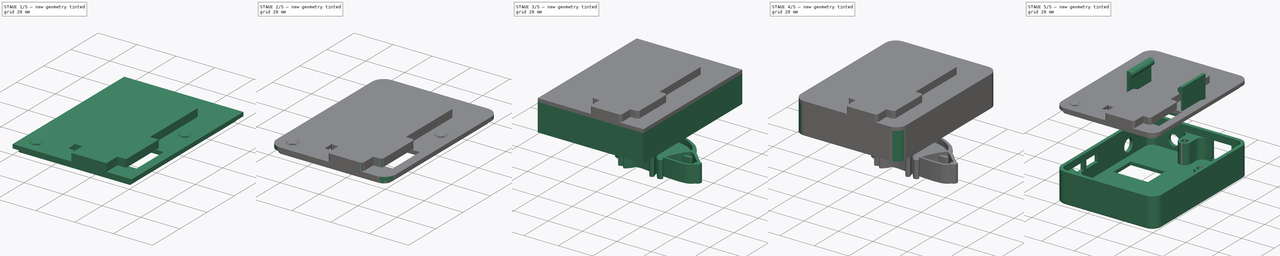
[diagram: build sequence overview — one tinted view per stage of 5, left to right]
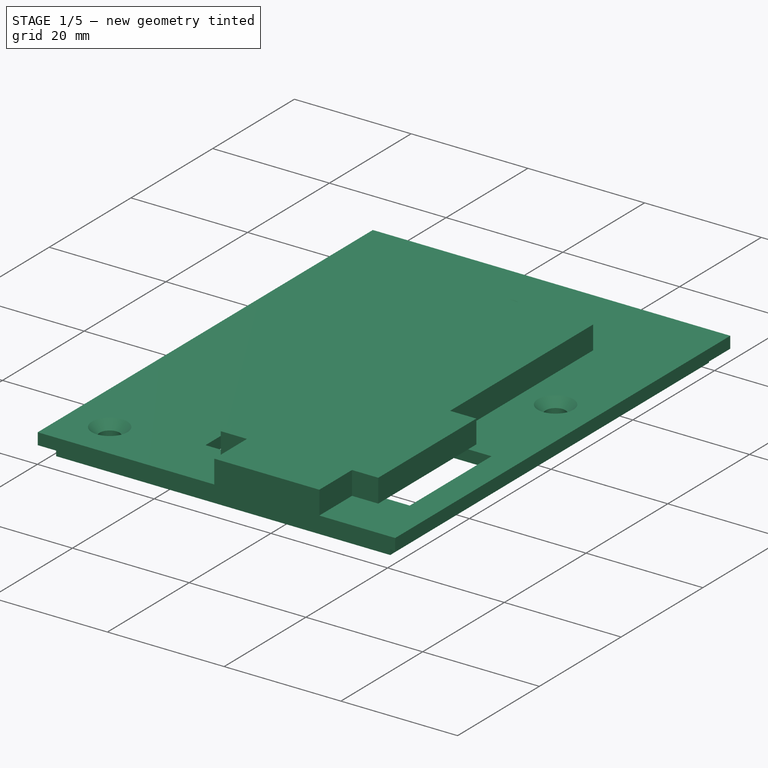
[diagram: stage 1 of 5 — iso view after this stage's code; geometry added in this stage tinted green]
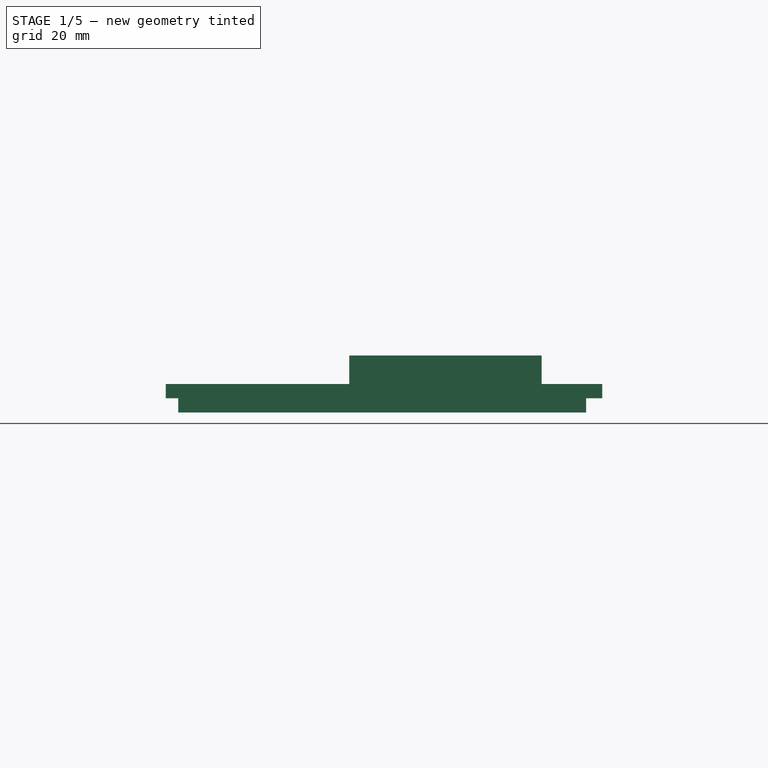
[diagram: stage 1 of 5 — front view after this stage's code; geometry added in this stage tinted green]
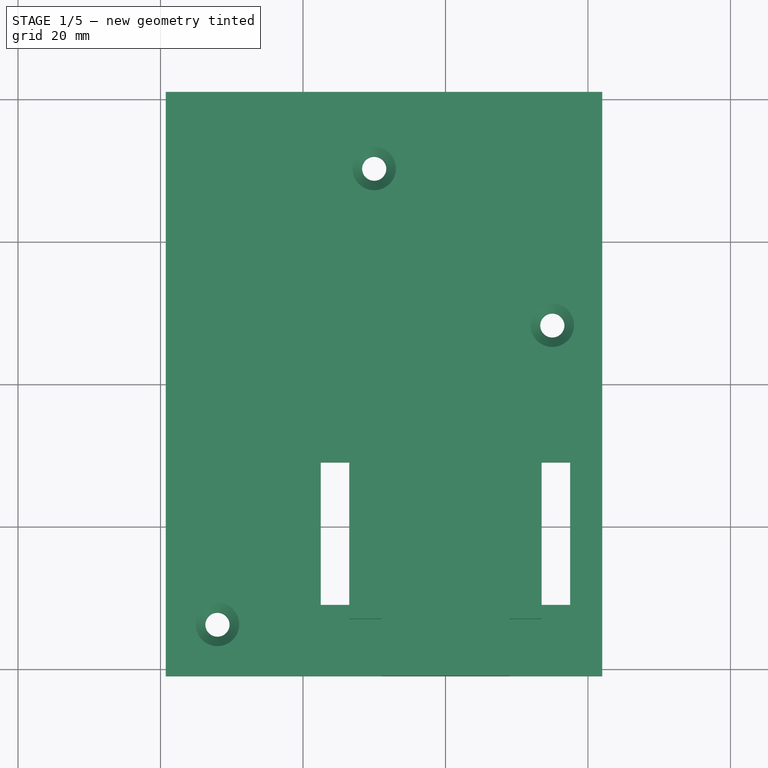
[diagram: stage 1 of 5 — top view after this stage's code; geometry added in this stage tinted green]
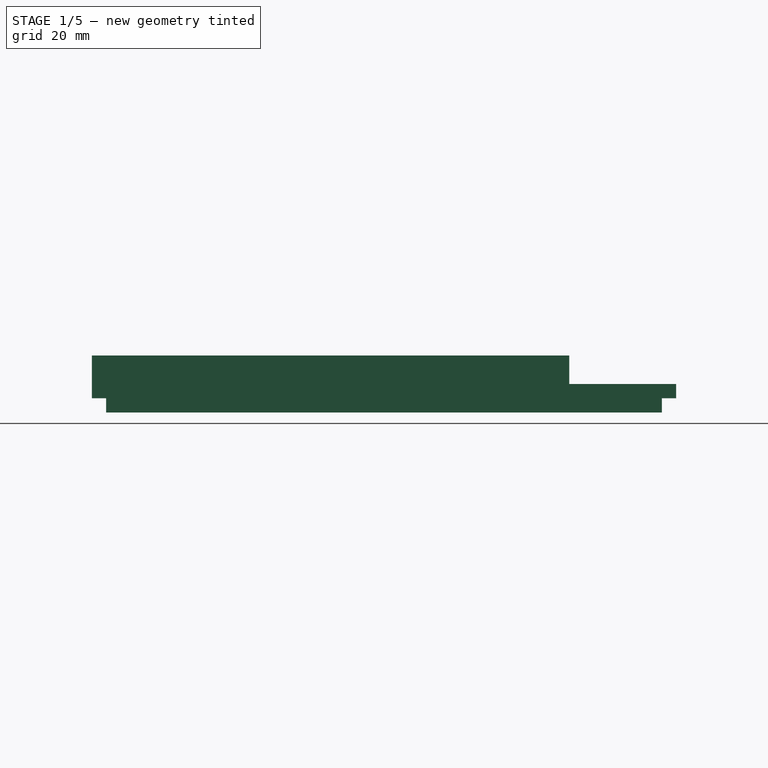
[diagram: stage 1 of 5 — right view after this stage's code; geometry added in this stage tinted green]
FCSTD DOCUMENT  (FreeCAD 0.21R33771 (Git))
Label: Elec Enclosure
License: All rights reserved
LicenseURL: http://en.wikipedia.org/wiki/All_rights_reserved
objects: Sketcher::SketchObject×13, PartDesign::Pad×7, PartDesign::Fillet×7, PartDesign::Pocket×5, Part::Feature×4, PartDesign::Body×3, PartDesign::Plane×3, Part::FeaturePython×2, PartDesign::Chamfer×1, Part::Extrusion×1, Part::Cut×1, PartDesign::Hole×1
note: 69 computed .brp shape members not serialized (recipe doc carries the construction recipe); baked Part::Feature solids carry a one-line shape summary decoded from their .brp

FEATURE [Sketcher::SketchObject] Sketch008
  FullyConstrained = true
  MapMode = 5
  Support = -> [XY_Plane002]
  sketch-geometry (19):
    g0: ArcOfCircle CenterX=-10 CenterY=30.25 CenterZ=0 NormalX=0 NormalY=0 NormalZ=1 AngleXU=0 Radius=3.5 StartAngle=3.14159 EndAngle=6.28319
    g1: ArcOfCircle CenterX=-32 CenterY=-33.75 CenterZ=0 NormalX=0 NormalY=0 NormalZ=1 AngleXU=0 Radius=3.5 StartAngle=0 EndAngle=1.5708
    g2: ArcOfCircle CenterX=15 CenterY=8.25 CenterZ=0 NormalX=0 NormalY=0 NormalZ=1 AngleXU=0 Radius=3.5 StartAngle=1.5708 EndAngle=4.71239
    g3: LineSegment StartX=-36.5 StartY=38 StartZ=0 EndX=-13.5 EndY=38 EndZ=0
    g4: LineSegment StartX=18.75 StartY=38 StartZ=0 EndX=18.75 EndY=11.75 EndZ=0
    g5: LineSegment StartX=18.75 StartY=-38 StartZ=0 EndX=-28.5 EndY=-38 EndZ=0
    g6: LineSegment StartX=-36.5 StartY=-30.25 StartZ=0 EndX=-36.5 EndY=38 EndZ=0
    g7: LineSegment StartX=-37.5 StartY=39 StartZ=0 EndX=19.75 EndY=39 EndZ=0
    g8: LineSegment StartX=19.75 StartY=39 StartZ=0 EndX=19.75 EndY=-39 EndZ=0
    g9: LineSegment StartX=19.75 StartY=-39 StartZ=0 EndX=-37.5 EndY=-39 EndZ=0
    g10: LineSegment StartX=-37.5 StartY=-39 StartZ=0 EndX=-37.5 EndY=39 EndZ=0
    g11: LineSegment StartX=15 StartY=11.75 StartZ=0 EndX=18.75 EndY=11.75 EndZ=0
    g12: LineSegment StartX=15 StartY=4.75 StartZ=0 EndX=18.75 EndY=4.75 EndZ=0
    g13: LineSegment StartX=-13.5 StartY=30.25 StartZ=0 EndX=-13.5 EndY=38 EndZ=0
    g14: LineSegment StartX=-6.5 StartY=30.25 StartZ=0 EndX=-6.5 EndY=38 EndZ=0
    g15: LineSegment StartX=-28.5 StartY=-33.75 StartZ=0 EndX=-28.5 EndY=-38 EndZ=0
    g16: LineSegment StartX=-32 StartY=-30.25 StartZ=0 EndX=-36.5 EndY=-30.25 EndZ=0
    g17: LineSegment StartX=18.75 StartY=4.75 StartZ=0 EndX=18.75 EndY=-38 EndZ=0
    g18: LineSegment StartX=-6.5 StartY=38 StartZ=0 EndX=18.75 EndY=38 EndZ=0
  constraints (53):
    c: DistanceY(g1,g0) = 64
    c: DistanceX(g1,g0) = 22
    c: DistanceY(g1,g2) = 42
    c: DistanceX(g1,g2) = 47
    c: Diameter(g0) = 7
    c: Equal(g0,g2)
    c: Equal(g2,g1)
    c: Coincident(g18,g4)
    c: Coincident(g17,g5)
    c: Coincident(g6,g3)
    c: Horizontal(g3)
    c: Horizontal(g5)
    c: Vertical(g4)
    c: Vertical(g6)
    c: Coincident(g7,g8)
    c: Coincident(g8,g9)
    c: Coincident(g9,g10)
    c: Coincident(g10,g7)
    c: Horizontal(g7)
    c: Horizontal(g9)
    c: Vertical(g10)
    c: Horizontal(g11)
    c: Horizontal(g12)
    c: Vertical(g13)
    c: Horizontal(g16)
    c: Vertical(g14)
    c: Vertical(g15)
    c: DistanceX(g11,g7) = 4.75
    c: DistanceX(g7,g7) = 57.25
    c: DistanceY(g10,g10) = 78
    c: DistanceY(g9,g1) = 5.25
    c: Tangent(g1,g16) = -1.5708
    c: Tangent(g1,g15) = 1.5708
    c: Coincident(g5,g15)
    c: Coincident(g6,g16)
    c: Tangent(g2,g12) = -1.5708
    c: Tangent(g2,g11) = 1.5708
    c: Coincident(g4,g11)
    c: Coincident(g17,g12)
    c: Tangent(g0,g14) = -1.5708
    c: Tangent(g0,g13) = 1.5708
    c: Coincident(g3,g13)
    c: Coincident(g18,g14)
    c: Horizontal(g14,g3)
    c: Horizontal(g18)
    c: Vertical(g17)
    c: Vertical(g12,g4)
    c: DistanceX(g7,g3) = 1
    c: DistanceY(g3,g7) = 1
    c: DistanceY(g8,g5) = 1
    c: DistanceX(g5,g8) = 1
    c: Symmetric(g7,g8,g-1)
    c: DistanceX(g-1,g2) = 15
FEATURE [PartDesign::Pad] Pad004
  Direction = (0,0,1)
  Length = 2
  Length2 = 10
  Profile = -> Sketch008
  ReferenceAxis = -> Sketch008 [N_Axis]
  Reversed = true
  Type = 0
FEATURE [Sketcher::SketchObject] Sketch009
  FullyConstrained = true
  MapMode = 5
  Support = -> [XY_Plane002]
  sketch-geometry (4):
    g0: LineSegment StartX=-39.25 StartY=41 StartZ=0 EndX=22 EndY=41 EndZ=0
    g1: LineSegment StartX=22 StartY=41 StartZ=0 EndX=22 EndY=-41 EndZ=0
    g2: LineSegment StartX=22 StartY=-41 StartZ=0 EndX=-39.25 EndY=-41 EndZ=0
    g3: LineSegment StartX=-39.25 StartY=-41 StartZ=0 EndX=-39.25 EndY=41 EndZ=0
  constraints (11):
    c: Coincident(g0,g1)
    c: Coincident(g1,g2)
    c: Coincident(g2,g3)
    c: Coincident(g3,g0)
    c: Horizontal(g0)
    c: Horizontal(g2)
    c: Vertical(g3)
    c: Symmetric(g0,g1,g-1)
    c: DistanceY(g3,g3) = 82
    c: DistanceX(g0,g0) = 61.25
    c: DistanceX(g-1,g1) = 22
FEATURE [PartDesign::Pad] Pad005
  BaseFeature = -> Pad004
  Direction = (0,0,1)
  Length = 2
  Length2 = 10
  Profile = -> Sketch009
  ReferenceAxis = -> Sketch009 [N_Axis]
  Type = 0
FEATURE [PartDesign::Plane] DatumPlane001
  AttachmentOffset = pos=(0,0,2) rot=(0,0,1;0rad)
  Length = 78.7669
  MapMode = 5
  Placement = pos=(0,0,2) rot=(0,0,1;0rad)
  ResizeMode = 0
  Support = -> [XY_Plane002]
  Width = 96.5169
FEATURE [Sketcher::SketchObject] Sketch010
  ExternalGeometry = -> [Pad005]
  FullyConstrained = true
  MapMode = 5
  Placement = pos=(0,0,2) rot=(0,0,1;0rad)
  Support = -> [DatumPlane001]
  sketch-geometry (12):
    g0: LineSegment StartX=-13.5 StartY=-33 StartZ=0 EndX=-9 EndY=-33 EndZ=0
    g1: LineSegment StartX=13.5 StartY=-33 StartZ=0 EndX=13.5 EndY=-9 EndZ=0
    g2: LineSegment StartX=13.5 StartY=-9 StartZ=0 EndX=9 EndY=-9 EndZ=0
    g3: LineSegment StartX=-13.5 StartY=-9 StartZ=0 EndX=-13.5 EndY=-33 EndZ=0
    g4: LineSegment StartX=-9 StartY=26 StartZ=0 EndX=9 EndY=26 EndZ=0
    g5: LineSegment StartX=9 StartY=26 StartZ=0 EndX=9 EndY=-9 EndZ=0
    g6: LineSegment StartX=-9 StartY=-9 StartZ=0 EndX=-9 EndY=26 EndZ=0
    g7: LineSegment StartX=-9 StartY=-9 StartZ=0 EndX=-13.5 EndY=-9 EndZ=0
    g8: LineSegment StartX=-9 StartY=-33 StartZ=0 EndX=-9 EndY=-41 EndZ=0
    g9: LineSegment StartX=-9 StartY=-41 StartZ=0 EndX=9 EndY=-41 EndZ=0
    g10: LineSegment StartX=9 StartY=-41 StartZ=0 EndX=9 EndY=-33 EndZ=0
    g11: LineSegment StartX=9 StartY=-33 StartZ=0 EndX=13.5 EndY=-33 EndZ=0
  constraints (36):
    c: Coincident(g11,g1)
    c: Coincident(g1,g2)
    c: Coincident(g7,g3)
    c: Coincident(g3,g0)
    c: Horizontal(g0)
    c: Horizontal(g2)
    c: Vertical(g1)
    c: Vertical(g3)
    c: Coincident(g4,g5)
    c: Coincident(g6,g4)
    c: Horizontal(g4)
    c: Vertical(g5)
    c: Vertical(g6)
    c: DistanceX(g0,g11) = 27
    c: DistanceX(g4,g4) = 18
    c: Equal(g2,g7)
    c: Coincident(g5,g2)
    c: Coincident(g7,g6)
    c: Horizontal(g7)
    c: Horizontal(g6,g2)
    c: Vertical(g8)
    c: Horizontal(g9)
    c: Coincident(g10,g9)
    c: Vertical(g10)
    c: Vertical(g6,g8)
    c: Vertical(g2,g10)
    c: Coincident(g0,g8)
    c: Coincident(g11,g10)
    c: Horizontal(g11)
    c: Horizontal(g10,g0)
    c: Horizontal(g9,g-3)
    c: DistanceY(g3,g3) = 24
    c: Coincident(g8,g9)
    c: DistanceX(g9,g-3) = 13
    c: DistanceY(g-3,g1) = 8
    c: DistanceY(g4,g-4) = 15
FEATURE [PartDesign::Pad] Pad006
  BaseFeature = -> Pad005
  Direction = (0,0,1)
  Length = 4
  Length2 = 10
  Profile = -> Sketch010
  ReferenceAxis = -> Sketch010 [N_Axis]
  Type = 0
FEATURE [PartDesign::Plane] DatumPlane002
  AttachmentOffset = pos=(0,0,31) rot=(0,0,1;0rad)
  Length = 75.5858
  MapMode = 5
  Placement = pos=(0,-31,-6.9e-15) rot=(1,0,0;1.5708rad)
  ResizeMode = 0
  Support = -> [XZ_Plane002]
  Width = 61.3358
FEATURE [Sketcher::SketchObject] Sketch011
  FullyConstrained = true
  MapMode = 5
  Placement = pos=(0,-31,-6.9e-15) rot=(1,0,0;1.5708rad)
  Support = -> [DatumPlane002]
  sketch-geometry (8):
    g0: LineSegment StartX=-17.5 StartY=7 StartZ=0 EndX=-17.5 EndY=0 EndZ=0
    g1: LineSegment StartX=17.5 StartY=0 StartZ=0 EndX=-17.5 EndY=0 EndZ=0
    g2: LineSegment StartX=17.5 StartY=0 StartZ=0 EndX=17.5 EndY=7 EndZ=0
    g3: LineSegment StartX=17.5 StartY=7 StartZ=0 EndX=13.5 EndY=7 EndZ=0
    g4: LineSegment StartX=13.5 StartY=7 StartZ=0 EndX=13.5 EndY=2 EndZ=0
    g5: LineSegment StartX=13.5 StartY=2 StartZ=0 EndX=-13.5 EndY=2 EndZ=0
    g6: LineSegment StartX=-13.5 StartY=2 StartZ=0 EndX=-13.5 EndY=7 EndZ=0
    g7: LineSegment StartX=-13.5 StartY=7 StartZ=0 EndX=-17.5 EndY=7 EndZ=0
  constraints (23):
    c: Vertical(g0)
    c: Coincident(g1,g0)
    c: Horizontal(g1)
    c: Coincident(g2,g1)
    c: Vertical(g2)
    c: Coincident(g3,g2)
    c: Horizontal(g3)
    c: Coincident(g4,g3)
    c: Vertical(g4)
    c: Coincident(g5,g4)
    c: Coincident(g6,g5)
    c: Vertical(g6)
    c: Coincident(g7,g6)
    c: Coincident(g7,g0)
    c: Horizontal(g7)
    c: PointOnObject(g-1,g1)
    c: DistanceY(g1,g4) = 2
    c: Equal(g4,g6)
    c: Equal(g7,g3)
    c: DistanceX(g3,g3) = 4
    c: Symmetric(g4,g5,g-2)
    c: DistanceX(g6,g3) = 27
    c: DistanceY(g4,g4) = 5
FEATURE [PartDesign::Pocket] Pocket004
  BaseFeature = -> Pad006
  Direction = (0,1,2e-16)
  Length = 20
  Length2 = 5
  Profile = -> Sketch011
  ReferenceAxis = -> Sketch011 [N_Axis]
  Type = 0
FEATURE [Sketcher::SketchObject] Sketch012
  ExternalGeometry = -> [Sketch008]
  FullyConstrained = true
  MapMode = 5
  Placement = pos=(0,0,2) rot=(0,0,1;0rad)
  Support = -> [DatumPlane001]
  sketch-geometry (3):
    g0: Circle CenterX=-32 CenterY=-33.75 CenterZ=0 NormalX=0 NormalY=0 NormalZ=1 AngleXU=0 Radius=1.5
    g1: Circle CenterX=-10 CenterY=30.25 CenterZ=0 NormalX=0 NormalY=0 NormalZ=1 AngleXU=0 Radius=1.5
    g2: Circle CenterX=15 CenterY=8.25 CenterZ=0 NormalX=0 NormalY=0 NormalZ=1 AngleXU=0 Radius=1.5
  constraints (6):
    c: Coincident(g0,g-4)
    c: Coincident(g1,g-5)
    c: Coincident(g2,g-3)
    c: Equal(g2,g1)
    c: Equal(g1,g0)
    c: Diameter(g1) = 3
FEATURE [PartDesign::Hole] Hole
  BaseFeature = -> Pocket004
  CustomThreadClearance = 0
  Depth = 25
  DepthType = 0
  Diameter = 3.4
  DrillForDepth = false
  DrillPoint = 1
  DrillPointAngle = 118
  HoleCutCountersinkAngle = 90
  HoleCutCustomValues = false
  HoleCutDepth = 0
  HoleCutDiameter = 6.1
  HoleCutType = 2
  ModelThread = false
  Profile = -> Sketch012
  Tapered = false
  TaperedAngle = 90
  ThreadClass = 0
  ThreadDepth = 25
  ThreadDepthType = 0
  ThreadDirection = 0
  ThreadFit = 0
  ThreadSize = 9
  ThreadType = 1
  Threaded = false
  UseCustomThreadClearance = false
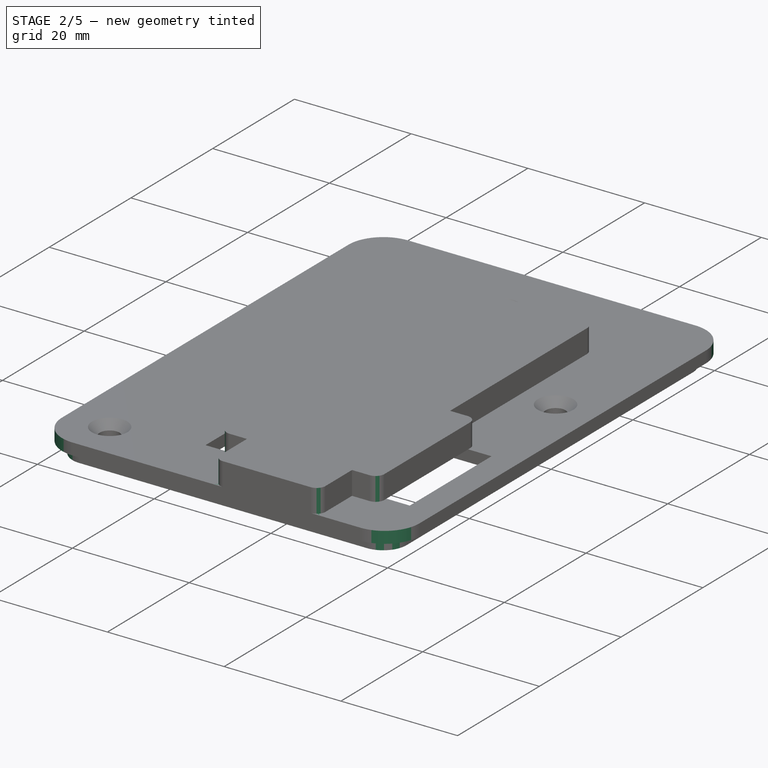
[diagram: stage 2 of 5 — iso view after this stage's code; geometry added in this stage tinted green]
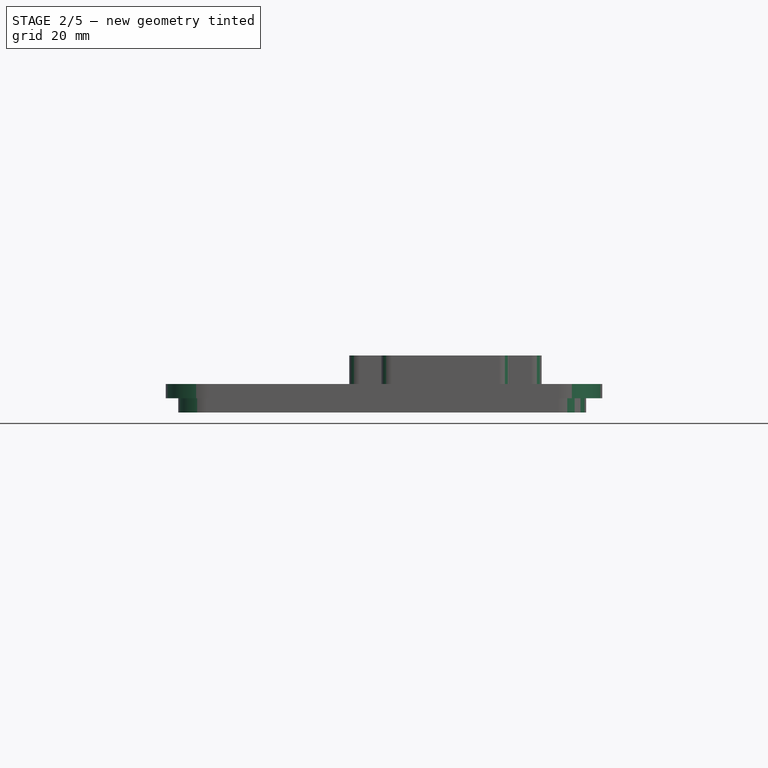
[diagram: stage 2 of 5 — front view after this stage's code; geometry added in this stage tinted green]
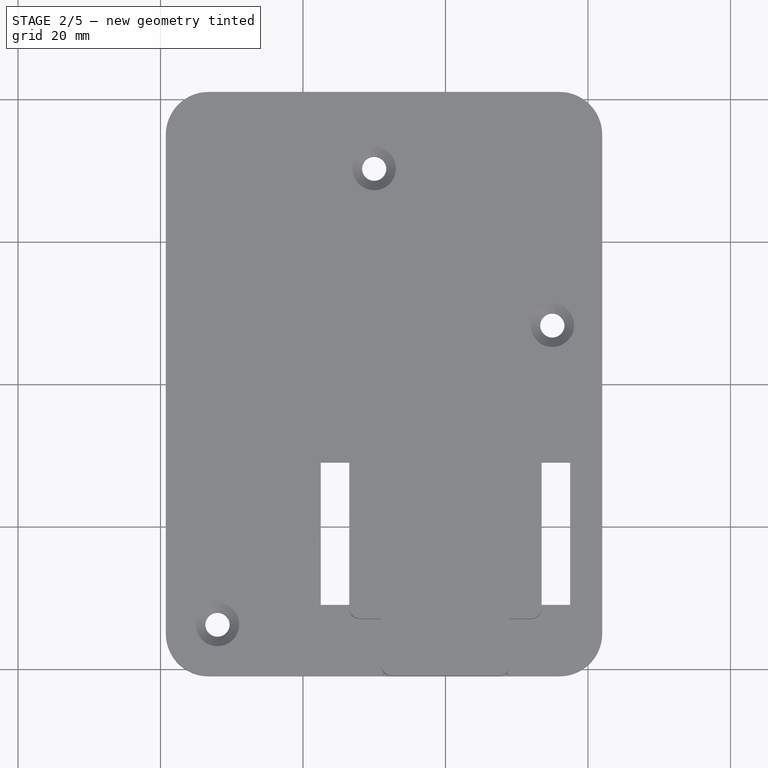
[diagram: stage 2 of 5 — top view after this stage's code; geometry added in this stage tinted green]
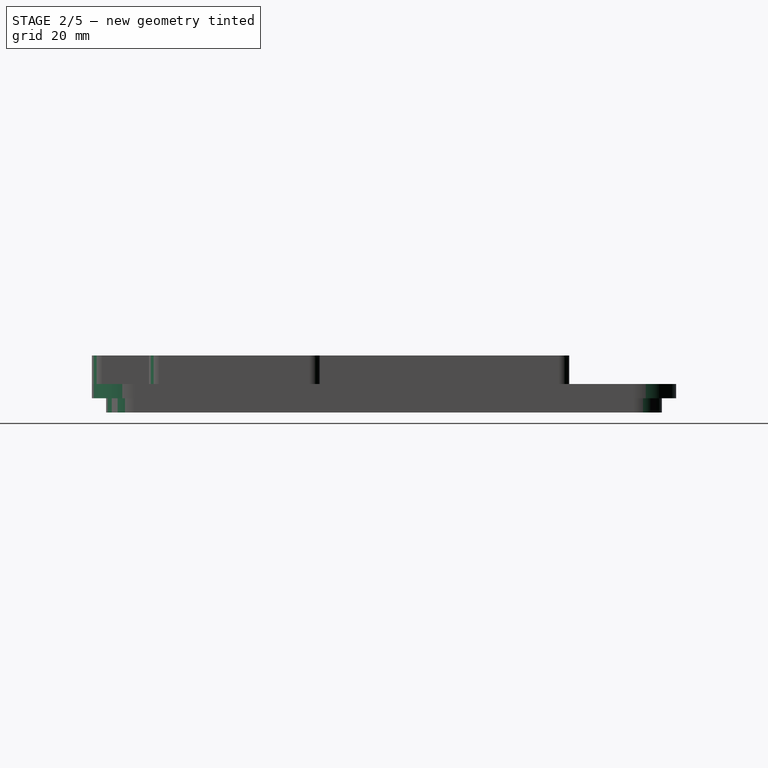
[diagram: stage 2 of 5 — right view after this stage's code; geometry added in this stage tinted green]
FEATURE [PartDesign::Fillet] Fillet003
  Base = -> Hole [Edge141,Edge147,Edge148,Edge142,Edge138,Edge137,Edge140,Edge139,Edge149]
  BaseFeature = -> Hole
  Radius = 3
  SupportTransform = false
  UseAllEdges = false
FEATURE [PartDesign::Fillet] Fillet004
  Base = -> Fillet003 [Edge85,Edge83,Edge81,Edge80]
  BaseFeature = -> Fillet003
  Radius = 4
  SupportTransform = false
  UseAllEdges = false
FEATURE [PartDesign::Fillet] Fillet005
  Base = -> Fillet004 [Edge156,Edge155,Edge175,Edge184,Edge182,Edge174,Edge164,Edge166]
  BaseFeature = -> Fillet004
  Radius = 1.5
  SupportTransform = false
  UseAllEdges = false
FEATURE [PartDesign::Fillet] Fillet006
  Base = -> Fillet005 [Edge51,Edge50,Edge61,Edge55]
  BaseFeature = -> Fillet005
  Radius = 6
  SupportTransform = false
  UseAllEdges = false
FEATURE [PartDesign::Body] Body002  label="Bottom"
  Group = -> [DatumPlane001,DatumPlane002,Sketch008,Pad004,Sketch009,Pad005,Sketch010,Pad006,Sketch011,Pocket004,Sketch012,Hole,Fillet003,Fillet004,Fillet005,Fillet006]
  Origin = -> Origin002
  Tip = -> Fillet006
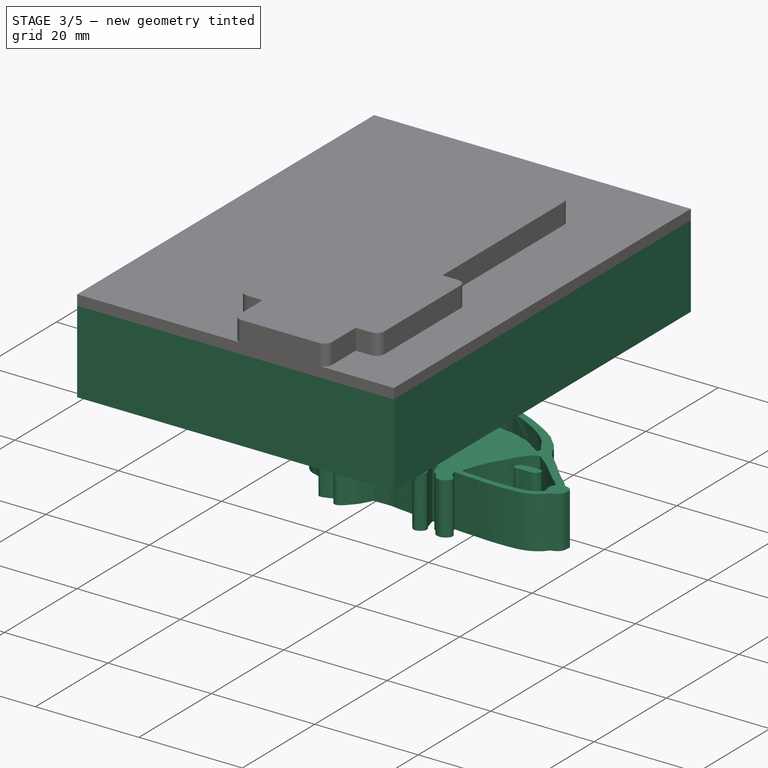
[diagram: stage 3 of 5 — iso view after this stage's code; geometry added in this stage tinted green]
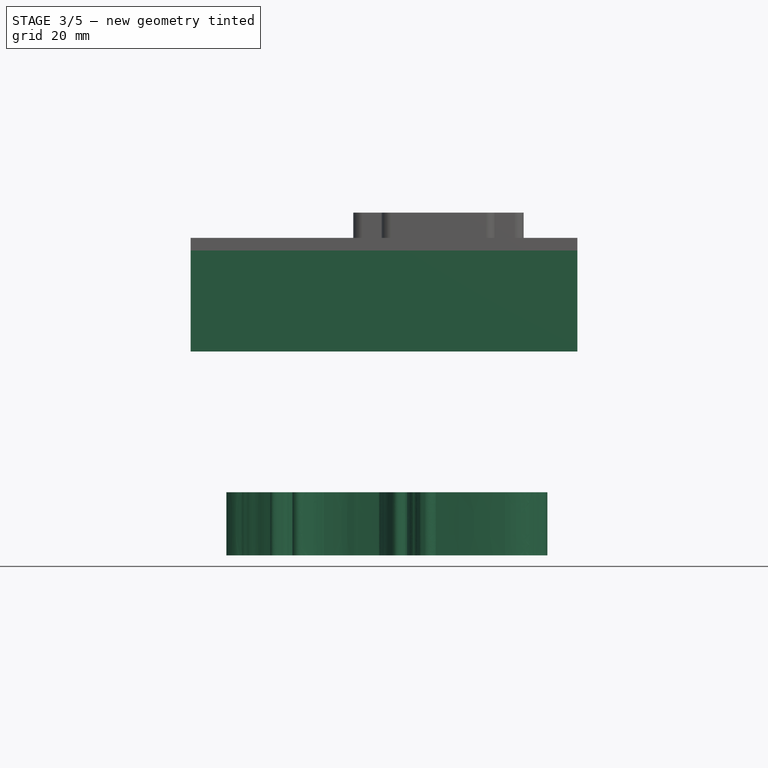
[diagram: stage 3 of 5 — front view after this stage's code; geometry added in this stage tinted green]
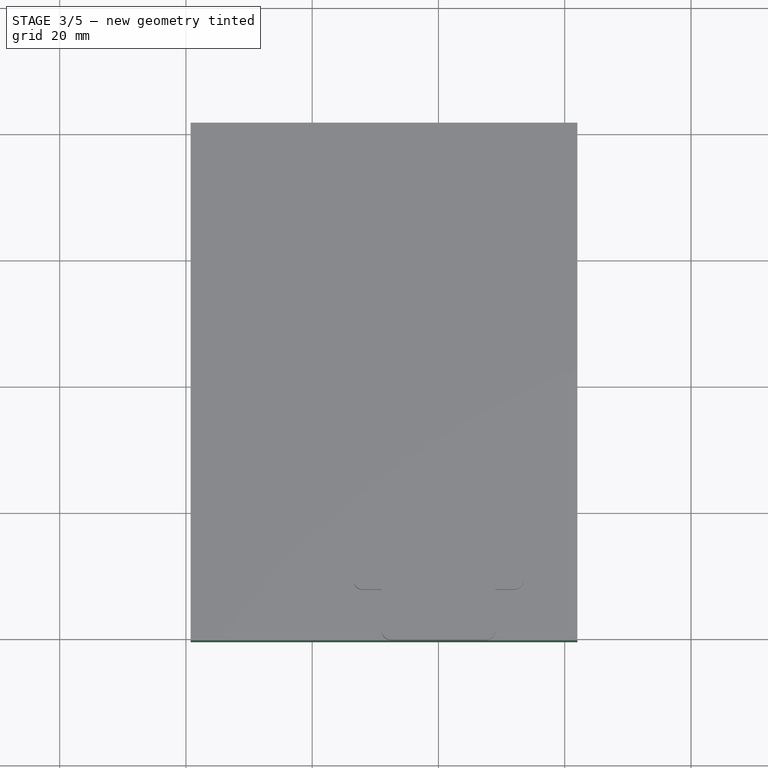
[diagram: stage 3 of 5 — top view after this stage's code; geometry added in this stage tinted green]
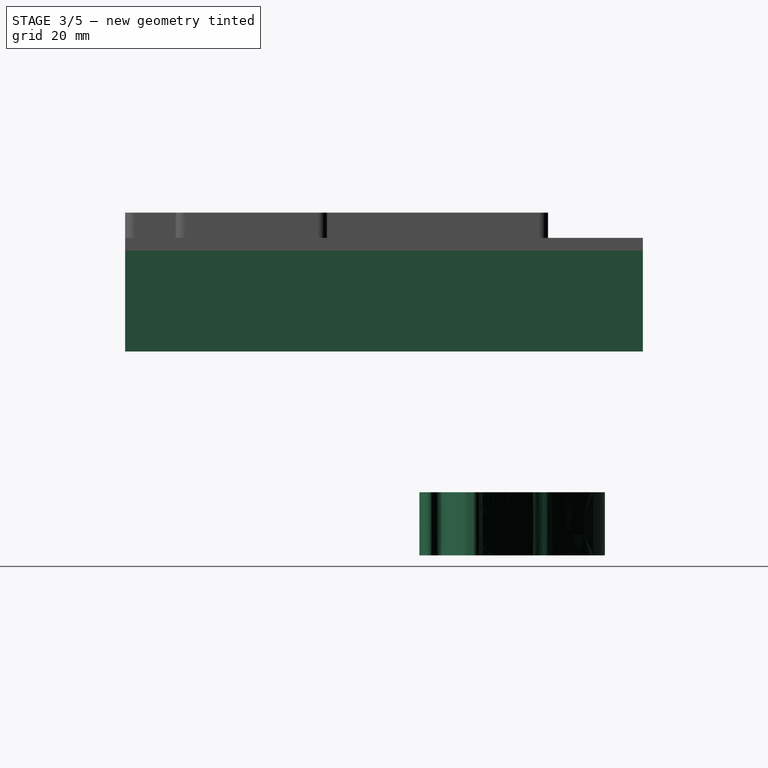
[diagram: stage 3 of 5 — right view after this stage's code; geometry added in this stage tinted green]
FEATURE [PartDesign::Body] Body  label="Bracket"
  Group = -> [Sketch,Pad]
  Origin = -> Origin
  Placement = pos=(0,-21,-24) rot=(0,0,1;0rad)
  Tip = -> Pad
FEATURE [Sketcher::SketchObject] Sketch002
  FullyConstrained = true
  MapMode = 5
  Support = -> [XY_Plane001]
  sketch-geometry (8):
    g0: LineSegment StartX=-37.25 StartY=39 StartZ=0 EndX=20 EndY=39 EndZ=0
    g1: LineSegment StartX=20 StartY=39 StartZ=0 EndX=20 EndY=-39 EndZ=0
    g2: LineSegment StartX=20 StartY=-39 StartZ=0 EndX=-37.25 EndY=-39 EndZ=0
    g3: LineSegment StartX=-37.25 StartY=-39 StartZ=0 EndX=-37.25 EndY=39 EndZ=0
    g4: LineSegment StartX=-39.25 StartY=41 StartZ=0 EndX=22 EndY=41 EndZ=0
    g5: LineSegment StartX=22 StartY=41 StartZ=0 EndX=22 EndY=-41 EndZ=0
    g6: LineSegment StartX=22 StartY=-41 StartZ=0 EndX=-39.25 EndY=-41 EndZ=0
    g7: LineSegment StartX=-39.25 StartY=-41 StartZ=0 EndX=-39.25 EndY=41 EndZ=0
  constraints (23):
    c: Coincident(g0,g1)
    c: Coincident(g1,g2)
    c: Coincident(g2,g3)
    c: Coincident(g3,g0)
    c: Horizontal(g0)
    c: Horizontal(g2)
    c: Vertical(g1)
    c: Symmetric(g0,g2,g-1)
    c: DistanceX(g-1,g0) = 20
    c: DistanceX(g0,g0) = 57.25
    c: DistanceY(g3,g3) = 78
    c: Coincident(g4,g5)
    c: Coincident(g5,g6)
    c: Coincident(g6,g7)
    c: Coincident(g7,g4)
    c: Horizontal(g4)
    c: Horizontal(g6)
    c: Vertical(g5)
    c: Vertical(g7)
    c: DistanceX(g0,g4) = 2
    c: DistanceY(g0,g4) = 2
    c: DistanceY(g6,g2) = 2
    c: DistanceX(g6,g2) = 2
FEATURE [Sketcher::SketchObject] Sketch001
  ExternalGeometry = -> [Sketch002]
  FullyConstrained = true
  MapMode = 5
  Support = -> [XY_Plane001]
  sketch-geometry (13):
    g0: ArcOfCircle CenterX=-32 CenterY=33.5 CenterZ=0 NormalX=0 NormalY=0 NormalZ=1 AngleXU=0 Radius=3.5 StartAngle=4.71239 EndAngle=6.28319
    g1: ArcOfCircle CenterX=15 CenterY=-8.5 CenterZ=0 NormalX=0 NormalY=0 NormalZ=1 AngleXU=0 Radius=3.5 StartAngle=1.5708 EndAngle=4.71239
    g2: ArcOfCircle CenterX=-10 CenterY=-30.5 CenterZ=0 NormalX=0 NormalY=0 NormalZ=1 AngleXU=0 Radius=3.5 StartAngle=4e-16 EndAngle=3.14159
    g3: LineSegment StartX=-37.25 StartY=30 StartZ=0 EndX=-32 EndY=30 EndZ=0
    g4: LineSegment StartX=-28.5 StartY=33.5 StartZ=0 EndX=-28.5 EndY=39 EndZ=0
    g5: LineSegment StartX=15 StartY=-5 StartZ=0 EndX=20 EndY=-5 EndZ=0
    g6: LineSegment StartX=15 StartY=-12 StartZ=0 EndX=20 EndY=-12 EndZ=0
    g7: LineSegment StartX=-13.5 StartY=-30.5 StartZ=0 EndX=-13.5 EndY=-39 EndZ=0
    g8: LineSegment StartX=-6.5 StartY=-30.5 StartZ=0 EndX=-6.5 EndY=-39 EndZ=0
    g9: LineSegment StartX=-37.25 StartY=30 StartZ=0 EndX=-37.25 EndY=39 EndZ=0
    g10: LineSegment StartX=-37.25 StartY=39 StartZ=0 EndX=-28.5 EndY=39 EndZ=0
    g11: LineSegment StartX=20 StartY=-5 StartZ=0 EndX=20 EndY=-12 EndZ=0
    g12: LineSegment StartX=-13.5 StartY=-39 StartZ=0 EndX=-6.5 EndY=-39 EndZ=0
  constraints (35):
    c: Diameter(g1) = 7
    c: Equal(g1,g0)
    c: Equal(g0,g2)
    c: DistanceX(g0,g1) = 47
    c: DistanceY(g1,g0) = 42
    c: DistanceX(g0,g2) = 22
    c: DistanceY(g2,g0) = 64
    c: Horizontal(g3)
    c: Vertical(g4)
    c: Horizontal(g5)
    c: Horizontal(g6)
    c: Vertical(g7)
    c: Vertical(g8)
    c: Tangent(g0,g4) = -1.5708
    c: Tangent(g0,g3) = -1.5708
    c: Tangent(g1,g6) = -1.5708
    c: Tangent(g1,g5) = 1.5708
    c: Tangent(g2,g7) = -1.5708
    c: Tangent(g2,g8) = 1.5708
    c: Horizontal(g7,g8)
    c: DistanceY(g0,g4) = 5.5
    c: Coincident(g9,g3)
    c: Vertical(g9)
    c: Coincident(g10,g9)
    c: Horizontal(g10)
    c: Coincident(g10,g4)
    c: Coincident(g11,g5)
    c: Coincident(g11,g6)
    c: Vertical(g11)
    c: Coincident(g12,g7)
    c: Coincident(g12,g8)
    c: DistanceX(g5,g5) = 5
    c: Coincident(g-3,g9)
    c: Vertical(g6,g-4)
    c: Horizontal(g8,g-4)
FEATURE [PartDesign::Pad] Pad001
  Direction = (0,0,1)
  Length = 16
  Length2 = 10
  Profile = -> Sketch002
  ReferenceAxis = -> Sketch002 [N_Axis]
  Reversed = true
  Type = 0
FEATURE [PartDesign::Pad] Pad002
  BaseFeature = -> Pad001
  Direction = (0,0,1)
  Length = 12
  Length2 = 10
  Profile = -> Sketch001
  ReferenceAxis = -> Sketch001 [N_Axis]
  Reversed = true
  Type = 0
FEATURE [Sketcher::SketchObject] Sketch003
  ExternalGeometry = -> [Pad002]
  FullyConstrained = true
  MapMode = 5
  Support = -> [XY_Plane001]
  sketch-geometry (4):
    g0: LineSegment StartX=-39.25 StartY=41 StartZ=0 EndX=22 EndY=41 EndZ=0
    g1: LineSegment StartX=22 StartY=41 StartZ=0 EndX=22 EndY=-41 EndZ=0
    g2: LineSegment StartX=22 StartY=-41 StartZ=0 EndX=-39.25 EndY=-41 EndZ=0
    g3: LineSegment StartX=-39.25 StartY=-41 StartZ=0 EndX=-39.25 EndY=41 EndZ=0
  constraints (10):
    c: Coincident(g0,g1)
    c: Coincident(g1,g2)
    c: Coincident(g2,g3)
    c: Coincident(g3,g0)
    c: Horizontal(g0)
    c: Horizontal(g2)
    c: Vertical(g1)
    c: Vertical(g3)
    c: Coincident(g0,g-3)
    c: Coincident(g1,g-4)
FEATURE [PartDesign::Pad] Pad003
  BaseFeature = -> Pad002
  Direction = (0,0,1)
  Length = 2
  Length2 = 10
  Profile = -> Sketch003
  ReferenceAxis = -> Sketch003 [N_Axis]
  Type = 0
FEATURE [PartDesign::Plane] DatumPlane
  AttachmentOffset = pos=(0,0,-12) rot=(0,0,1;0rad)
  Length = 78.7669
  MapMode = 5
  Placement = pos=(0,0,-12) rot=(0,0,1;0rad)
  ResizeMode = 0
  Support = -> [XY_Plane001]
  Width = 96.5169
FEATURE [Sketcher::SketchObject] Sketch004
  ExternalGeometry = -> [Sketch001]
  FullyConstrained = true
  MapMode = 5
  Placement = pos=(0,0,-12) rot=(0,0,1;0rad)
  Support = -> [DatumPlane]
  sketch-geometry (3):
    g0: Circle CenterX=-32 CenterY=33.5 CenterZ=0 NormalX=0 NormalY=0 NormalZ=1 AngleXU=0 Radius=2
    g1: Circle CenterX=15 CenterY=-8.5 CenterZ=0 NormalX=0 NormalY=0 NormalZ=1 AngleXU=0 Radius=2
    g2: Circle CenterX=-10 CenterY=-30.5 CenterZ=0 NormalX=0 NormalY=0 NormalZ=1 AngleXU=0 Radius=2
  constraints (6):
    c: Coincident(g0,g-3)
    c: Coincident(g1,g-4)
    c: Coincident(g2,g-5)
    c: Diameter(g2) = 4
    c: Equal(g2,g1)
    c: Equal(g1,g0)
FEATURE [PartDesign::Pocket] Pocket
  BaseFeature = -> Pad003
  Direction = (0,0,-1)
  Length = 5
  Length2 = 5
  Profile = -> Sketch004
  ReferenceAxis = -> Sketch004 [N_Axis]
  Reversed = true
  Type = 0
FEATURE [PartDesign::Body] Body001  label="TopShape"
  Group = -> [DatumPlane,Sketch002,Sketch001,Pad001,Pad002,Sketch003,Pad003,Sketch004,Pocket,Fillet,Fillet001,Chamfer,Fillet002,Sketch005,Pocket001,Sketch006,Pocket002,Sketch007,Pocket003]
  Origin = -> Origin001
  Tip = -> Pocket003
FEATURE [Part::Feature] path0
  shape: bbox 101.9 x 59.1 x 2e-07 mm, 1 faces, 0 solids (baked)
FEATURE [Part::Feature] path001
  shape: bbox 73.51 x 40.75 x 2e-07 mm, 1 faces, 0 solids (baked)
FEATURE [Part::Feature] path002
  shape: bbox 30.31 x 24.47 x 2e-07 mm, 1 faces, 0 solids (baked)
FEATURE [Part::Feature] path003
  shape: bbox 10.73 x 4.192 x 2e-07 mm, 1 faces, 0 solids (baked)
FEATURE [Part::FeaturePython] XOR  label="Ade"  # WARN: FeaturePython — macro-defined, semantics opaque (R4)
  Objects = -> [path0,path001,path002,path003]
  Placement = pos=(0,0,0) rot=(0,0,-1;1.5708rad)
  Tolerance = 0
FEATURE [Part::FeaturePython] Clone  label="AdeScale"  # Draft clone (typed FeaturePython)
  AttacherType = Attacher::AttachEngine3D
  Fuse = false
  Objects = -> [XOR]
  Placement = pos=(30.4,28.4,-1) rot=(0,0,1;0rad)
  Scale = (-0.5,0.5,0.5)
FEATURE [Part::Extrusion] Extrude  label="AdeExtrude"
  Base = -> Clone
  Dir = (0,0,-1)
  DirMode = 0
  FaceMakerClass = Part::FaceMakerBullseye
  LengthFwd = 10
  LengthRev = 0
  Placement = pos=(-10,19,-37.3) rot=(0,0,1;0rad)
  Solid = false
  Symmetric = false
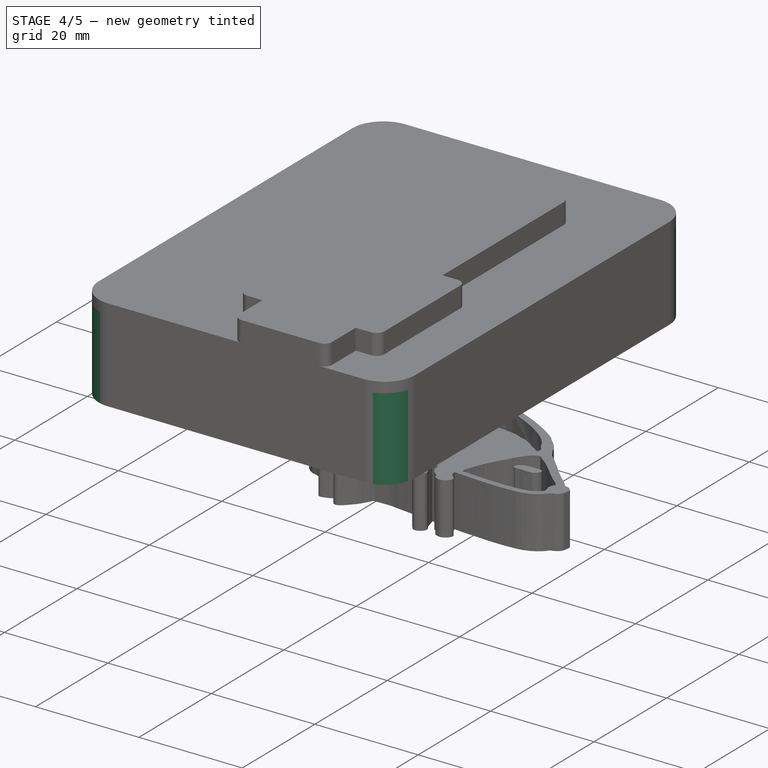
[diagram: stage 4 of 5 — iso view after this stage's code; geometry added in this stage tinted green]
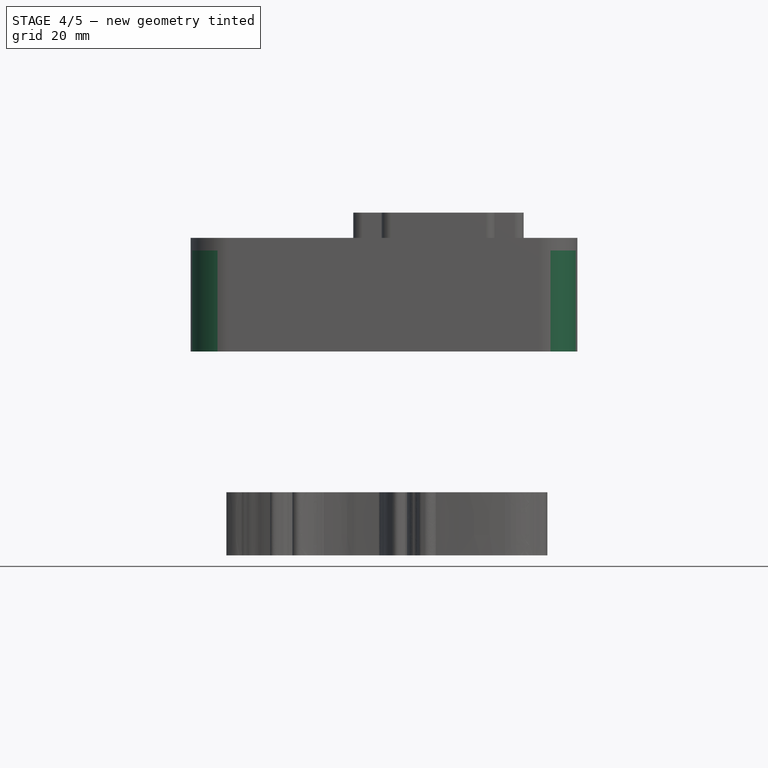
[diagram: stage 4 of 5 — front view after this stage's code; geometry added in this stage tinted green]
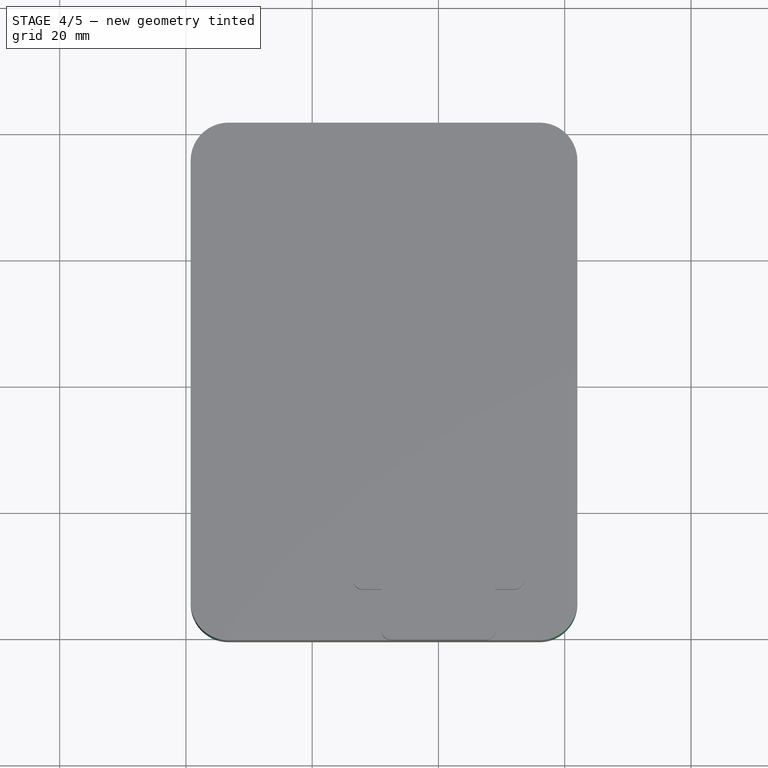
[diagram: stage 4 of 5 — top view after this stage's code; geometry added in this stage tinted green]
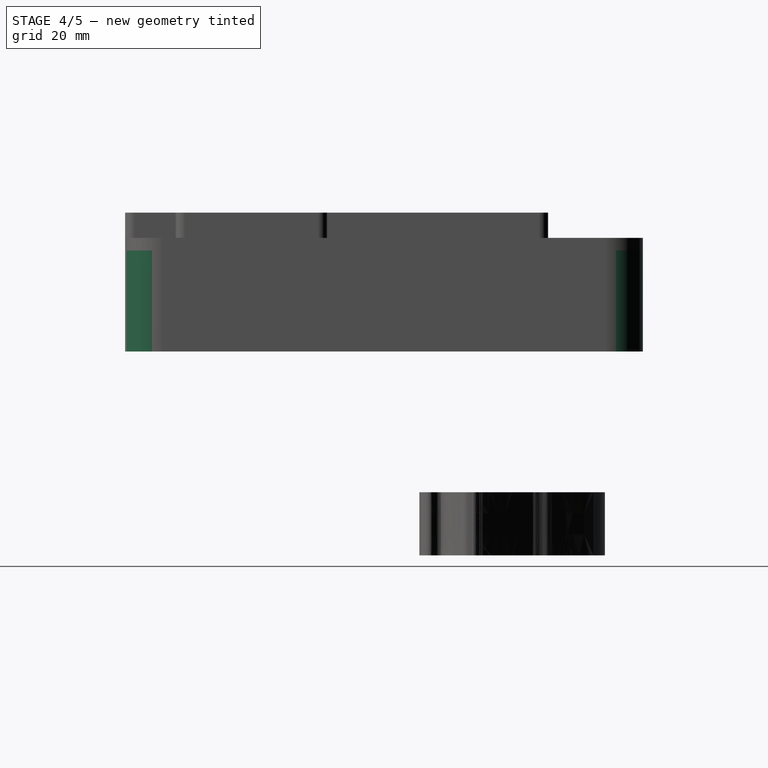
[diagram: stage 4 of 5 — right view after this stage's code; geometry added in this stage tinted green]
FEATURE [PartDesign::Fillet] Fillet
  Base = -> Pocket [Edge28,Edge35,Edge41,Edge43,Edge26,Edge33,Edge31,Edge37,Edge39,Edge29]
  BaseFeature = -> Pocket
  Radius = 4
  SupportTransform = false
  UseAllEdges = false
FEATURE [PartDesign::Fillet] Fillet001
  Base = -> Fillet [Edge48,Edge47,Edge52,Edge50]
  BaseFeature = -> Fillet
  Radius = 6
  SupportTransform = false
  UseAllEdges = false
FEATURE [PartDesign::Chamfer] Chamfer
  Angle = 45
  Base = -> Fillet001 [Edge72]
  BaseFeature = -> Fillet001
  ChamferType = 0
  FlipDirection = false
  Size = 0.5
  Size2 = 1
  SupportTransform = false
  UseAllEdges = false
FEATURE [PartDesign::Fillet] Fillet002
  Base = -> Chamfer [Edge51]
  BaseFeature = -> Chamfer
  Radius = 1
  SupportTransform = false
  UseAllEdges = false
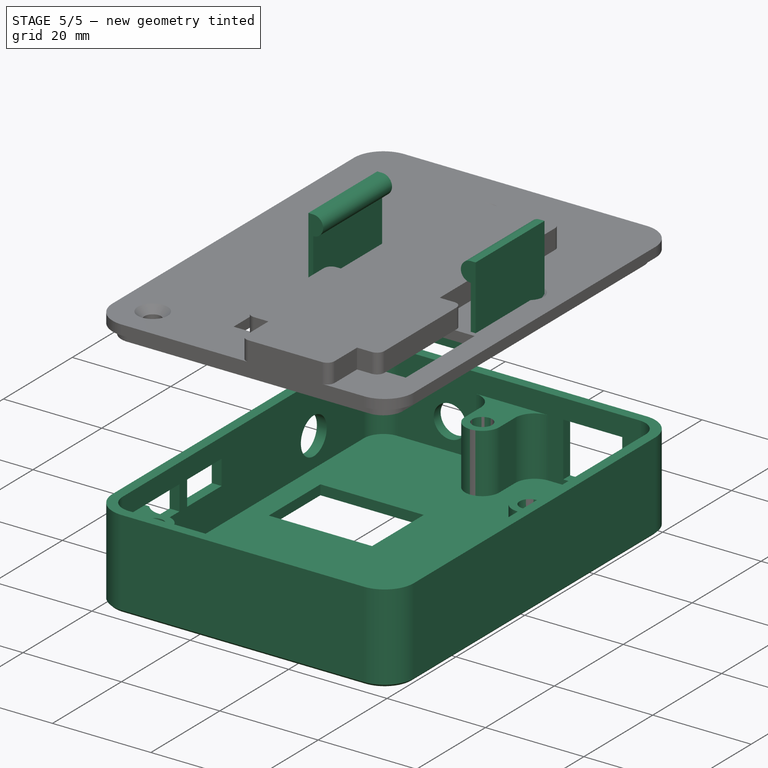
[diagram: stage 5 of 5 — iso view after this stage's code; geometry added in this stage tinted green]
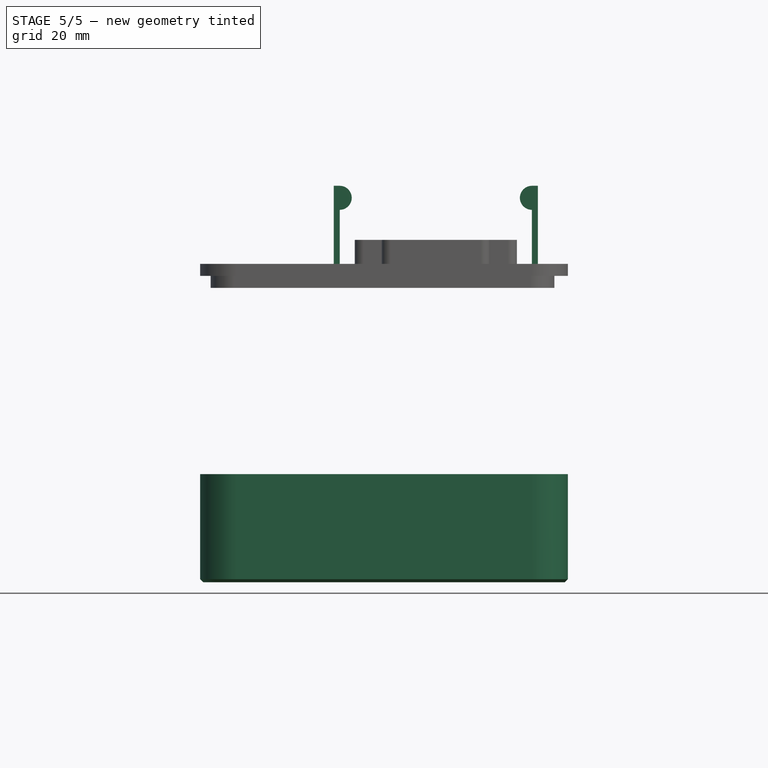
[diagram: stage 5 of 5 — front view after this stage's code; geometry added in this stage tinted green]
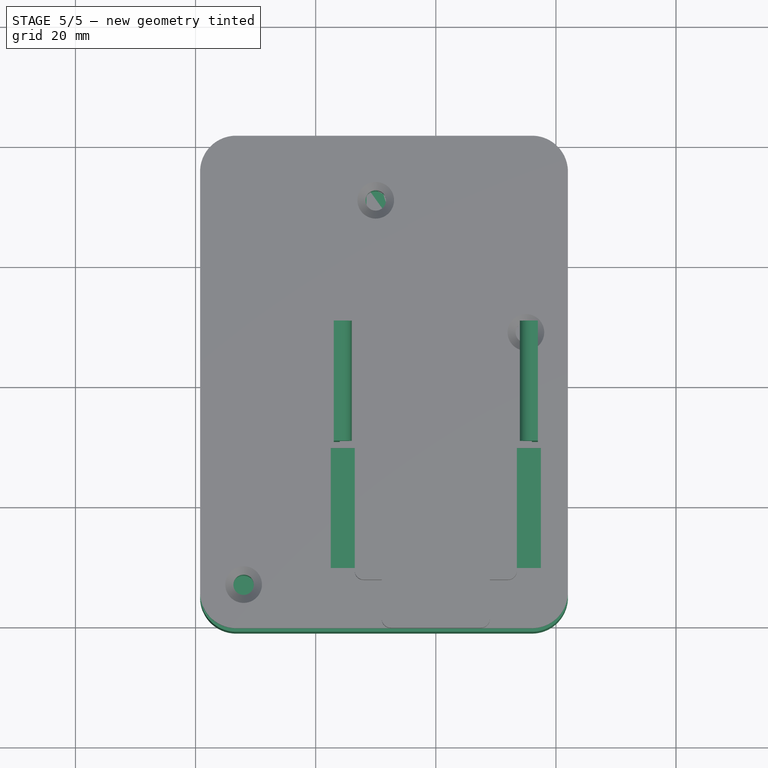
[diagram: stage 5 of 5 — top view after this stage's code; geometry added in this stage tinted green]
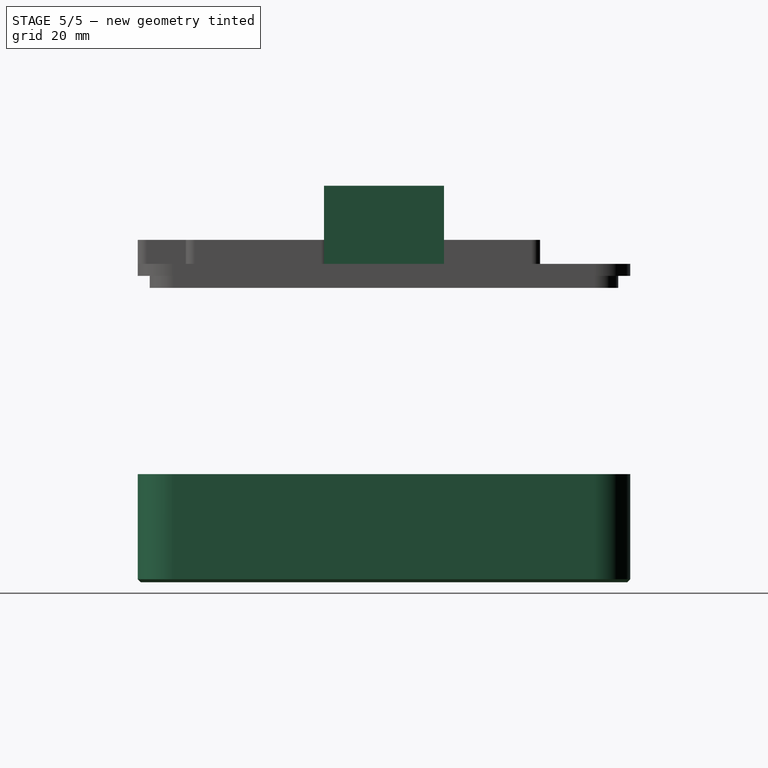
[diagram: stage 5 of 5 — right view after this stage's code; geometry added in this stage tinted green]
FEATURE [Sketcher::SketchObject] Sketch
  FullyConstrained = true
  MapMode = 5
  Placement = pos=(0,0,0) rot=(1,0,0;1.5708rad)
  Support = -> [XZ_Plane]
  sketch-geometry (10):
    g0: LineSegment StartX=-17 StartY=15 StartZ=0 EndX=-17 EndY=-2 EndZ=0
    g1: LineSegment StartX=-17 StartY=-2 StartZ=0 EndX=17 EndY=-2 EndZ=0
    g2: LineSegment StartX=17 StartY=-2 StartZ=0 EndX=17 EndY=15 EndZ=0
    g3: LineSegment StartX=17 StartY=15 StartZ=0 EndX=16 EndY=15 EndZ=0
    g4: ArcOfCircle CenterX=16 CenterY=13 CenterZ=0 NormalX=0 NormalY=0 NormalZ=1 AngleXU=0 Radius=2 StartAngle=1.5708 EndAngle=4.71239
    g5: LineSegment StartX=16 StartY=11 StartZ=0 EndX=16 EndY=0 EndZ=0
    g6: LineSegment StartX=16 StartY=0 StartZ=0 EndX=-16 EndY=0 EndZ=0
    g7: LineSegment StartX=-16 StartY=0 StartZ=0 EndX=-16 EndY=11 EndZ=0
    g8: ArcOfCircle CenterX=-16 CenterY=13 CenterZ=0 NormalX=0 NormalY=0 NormalZ=1 AngleXU=0 Radius=2 StartAngle=4.71239 EndAngle=7.85398
    g9: LineSegment StartX=-16 StartY=15 StartZ=0 EndX=-17 EndY=15 EndZ=0
  constraints (28):
    c: Vertical(g0)
    c: Coincident(g0,g1)
    c: Coincident(g1,g2)
    c: Vertical(g2)
    c: Coincident(g2,g3)
    c: Tangent(g3,g4) = -1.5708
    c: Coincident(g4,g5)
    c: Vertical(g5)
    c: Coincident(g5,g6)
    c: Coincident(g6,g7)
    c: Vertical(g7)
    c: Perpendicular(g7,g8) = 4.71239
    c: Coincident(g8,g9)
    c: Coincident(g9,g0)
    c: Horizontal(g9)
    c: Horizontal(g3)
    c: Equal(g4,g8)
    c: Horizontal(g3,g8)
    c: Symmetric(g5,g6,g-2)
    c: Vertical(g4,g4)
    c: DistanceY(g1,g5) = 2
    c: DistanceX(g3,g3) = 1
    c: DistanceY(g5,g4) = 11
    c: Radius(g4) = 2
    c: Equal(g3,g9)
    c: DistanceX(g6,g6) = 32
    c: Symmetric(g1,g0,g-2)
    c: PointOnObject(g6,g-1)
FEATURE [PartDesign::Pad] Pad
  Direction = (0,-1,-2e-16)
  Length = 20
  Length2 = 10
  Midplane = true
  Placement = pos=(0,0,0) rot=(1,0,0;1.5708rad)
  Profile = -> Sketch
  ReferenceAxis = -> Sketch [N_Axis]
  Type = 0
FEATURE [Sketcher::SketchObject] Sketch005
  ExternalGeometry = -> [DatumPlane,Sketch001]
  FullyConstrained = true
  MapMode = 5
  Placement = pos=(0,0,0) rot=(0.57735,0.57735,0.57735;2.0944rad)
  Support = -> [YZ_Plane001]
  sketch-geometry (11):
    g0: LineSegment StartX=6.255 StartY=-12 StartZ=0 EndX=16.255 EndY=-12 EndZ=0
    g1: LineSegment StartX=16.255 StartY=-12 StartZ=0 EndX=16.255 EndY=-7 EndZ=0
    g2: LineSegment StartX=16.255 StartY=-7 StartZ=0 EndX=6.255 EndY=-7 EndZ=0
    g3: LineSegment StartX=6.255 StartY=-7 StartZ=0 EndX=6.255 EndY=-12 EndZ=0
    g4: LineSegment StartX=18.5 StartY=-12 StartZ=0 EndX=28.5 EndY=-12 EndZ=0
    g5: LineSegment StartX=28.5 StartY=-12 StartZ=0 EndX=28.5 EndY=-7 EndZ=0
    g6: LineSegment StartX=28.5 StartY=-7 StartZ=0 EndX=18.5 EndY=-7 EndZ=0
    g7: LineSegment StartX=18.5 StartY=-7 StartZ=0 EndX=18.5 EndY=-12 EndZ=0
    g8: GeomPoint X=23.5 Y=-12 Z=0
    g9: GeomPoint X=11.255 Y=-12 Z=0
    g10: Circle CenterX=-20.5 CenterY=-6 CenterZ=0 NormalX=0 NormalY=0 NormalZ=1 AngleXU=0 Radius=3.75
  constraints (29):
    c: Coincident(g0,g1)
    c: Coincident(g1,g2)
    c: Coincident(g2,g3)
    c: Coincident(g3,g0)
    c: Horizontal(g0)
    c: Horizontal(g2)
    c: Vertical(g1)
    c: Vertical(g3)
    c: Coincident(g4,g5)
    c: Coincident(g5,g6)
    c: Coincident(g6,g7)
    c: Coincident(g7,g4)
    c: Horizontal(g4)
    c: Horizontal(g6)
    c: Vertical(g5)
    c: Vertical(g7)
    c: Horizontal(g4,g0)
    c: Equal(g4,g0)
    c: DistanceX(g2,g2) = 10
    c: Horizontal(g6,g1)
    c: DistanceY(g3,g3) = 5
    c: PointOnObject(g0,g-3)
    c: Symmetric(g0,g0,g9)
    c: Symmetric(g4,g4,g8)
    c: DistanceX(g9,g8) = 12.245
    c: DistanceX(g8,g-4) = 10
    c: Diameter(g10) = 7.5
    c: DistanceY(g0,g10) = 6
    c: DistanceX(g10,g-4) = 54
FEATURE [PartDesign::Pocket] Pocket001
  BaseFeature = -> Fillet002
  Direction = (-1,2e-16,-3e-16)
  Length = 0
  Length2 = 5
  Profile = -> Sketch005
  ReferenceAxis = -> Sketch005 [N_Axis]
  Type = 3
  UpToFace = -> Fillet002 [Face15]
FEATURE [Sketcher::SketchObject] Sketch006
  AttachmentOffset = pos=(0,0,17) rot=(0,0,1;0rad)
  ExternalGeometry = -> [DatumPlane,Pocket001,Sketch001]
  FullyConstrained = true
  MapMode = 5
  Placement = pos=(0,-17,-3.8e-15) rot=(1,0,0;1.5708rad)
  Support = -> [XZ_Plane001]
  sketch-geometry (7):
    g0: Circle CenterX=-22.52 CenterY=-5.5 CenterZ=0 NormalX=0 NormalY=0 NormalZ=1 AngleXU=0 Radius=3.3
    g1: LineSegment StartX=0.5 StartY=-1 StartZ=0 EndX=12.5 EndY=-1 EndZ=0
    g2: LineSegment StartX=12.5 StartY=-1 StartZ=0 EndX=12.5 EndY=-12 EndZ=0
    g3: LineSegment StartX=12.5 StartY=-12 StartZ=0 EndX=0.5 EndY=-12 EndZ=0
    g4: LineSegment StartX=0.5 StartY=-12 StartZ=0 EndX=0.5 EndY=-1 EndZ=0
    g5: GeomPoint X=-10 Y=6.8e-15 Z=0
    g6: GeomPoint X=6.5 Y=-1 Z=0
  constraints (17):
    c: Coincident(g1,g2)
    c: Coincident(g2,g3)
    c: Coincident(g3,g4)
    c: Coincident(g4,g1)
    c: Horizontal(g1)
    c: Horizontal(g3)
    c: Vertical(g2)
    c: Vertical(g4)
    c: DistanceX(g1,g1) = 12
    c: DistanceY(g2,g2) = 11
    c: PointOnObject(g2,g-3)
    c: Diameter(g0) = 6.6
    c: DistanceY(g3,g0) = 6.5
    c: Symmetric(g-5,g-5,g5)
    c: DistanceX(g0,g5) = 12.52
    c: Symmetric(g1,g1,g6)
    c: DistanceX(g5,g6) = 16.5
FEATURE [PartDesign::Pocket] Pocket002
  BaseFeature = -> Pocket001
  Direction = (0,1,2e-16)
  Length = 0
  Length2 = 5
  Profile = -> Sketch006
  ReferenceAxis = -> Sketch006 [N_Axis]
  Type = 3
  UpToFace = -> Pocket001 [Face24]
FEATURE [Sketcher::SketchObject] Sketch007
  ExternalGeometry = -> [Sketch002]
  FullyConstrained = true
  MapMode = 5
  Support = -> [XY_Plane001]
  sketch-geometry (4):
    g0: LineSegment StartX=-32.75 StartY=-1 StartZ=0 EndX=-11.75 EndY=-1 EndZ=0
    g1: LineSegment StartX=-11.75 StartY=-1 StartZ=0 EndX=-11.75 EndY=-16 EndZ=0
    g2: LineSegment StartX=-11.75 StartY=-16 StartZ=0 EndX=-32.75 EndY=-16 EndZ=0
    g3: LineSegment StartX=-32.75 StartY=-16 StartZ=0 EndX=-32.75 EndY=-1 EndZ=0
  constraints (12):
    c: Coincident(g0,g1)
    c: Coincident(g1,g2)
    c: Coincident(g2,g3)
    c: Coincident(g3,g0)
    c: Horizontal(g0)
    c: Horizontal(g2)
    c: Vertical(g1)
    c: Vertical(g3)
    c: DistanceX(g0,g0) = 21
    c: DistanceY(g3,g3) = 15
    c: DistanceX(g-4,g2) = 4.5
    c: DistanceY(g-3,g1) = 23
FEATURE [PartDesign::Pocket] Pocket003
  BaseFeature = -> Pocket002
  Direction = (0,0,-1)
  Length = 0
  Length2 = 5
  Profile = -> Sketch007
  ReferenceAxis = -> Sketch007 [N_Axis]
  Type = 3
  UpToFace = -> Pocket002 [Face9]
FEATURE [Part::Cut] Cut  label="Top"
  Base = -> Body001
  Placement = pos=(0,0,-49) rot=(1,0,0;3.14159rad)
  Tool = -> Extrude
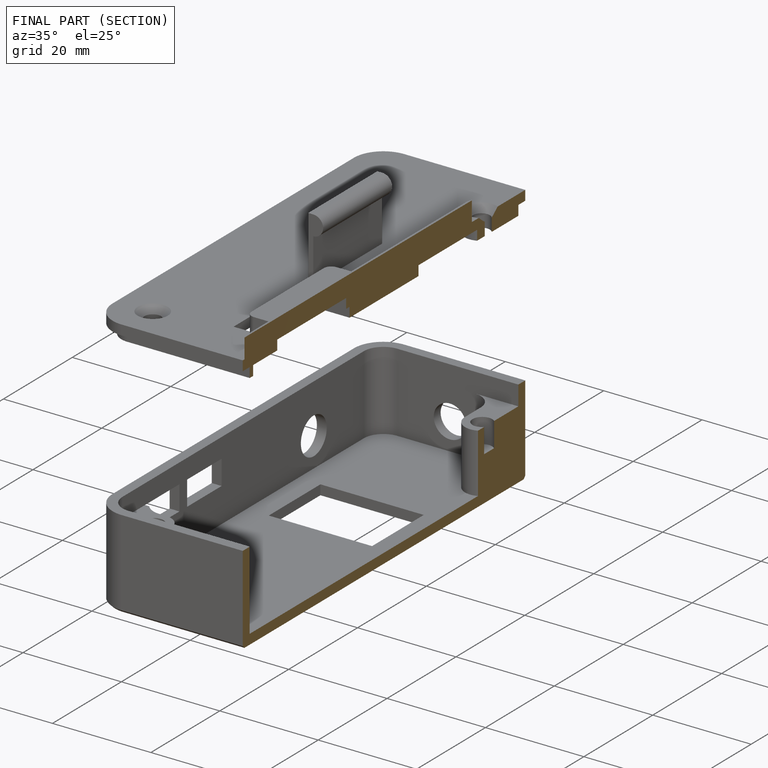
[diagram: finished part — half-section view (interior)]
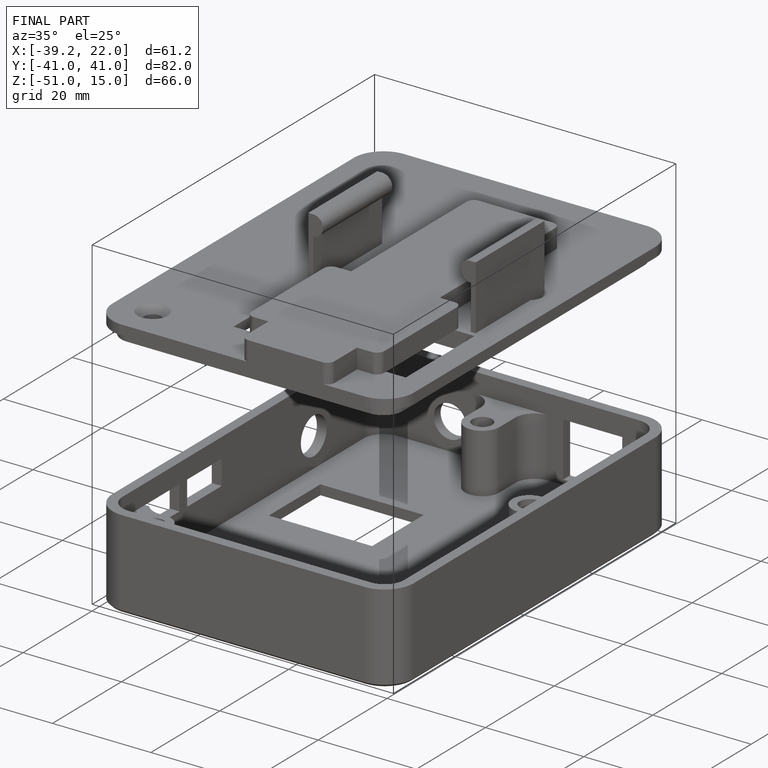
[diagram: finished part — iso view with bounding-box wireframe]
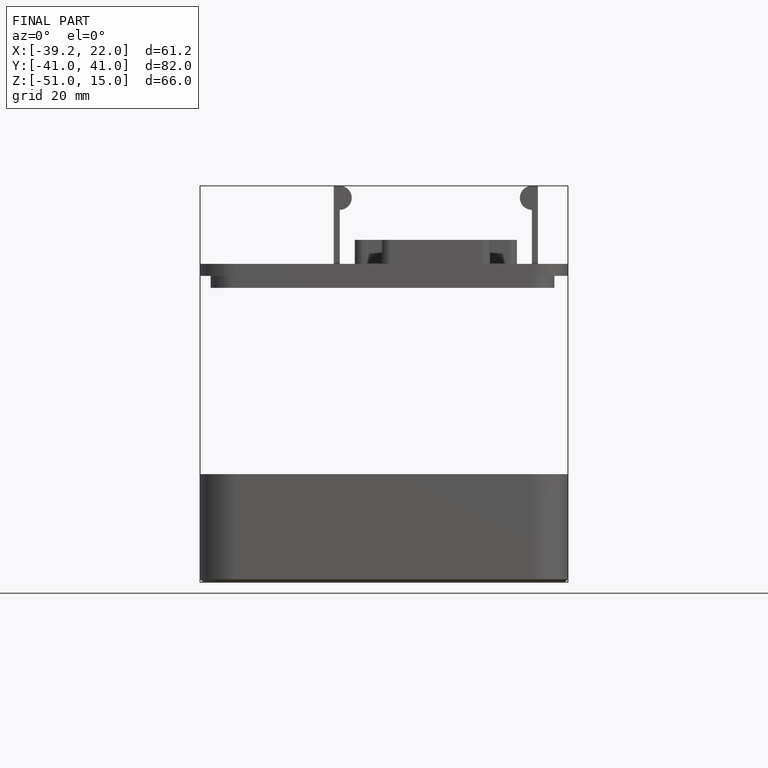
[diagram: finished part — front view with bounding-box wireframe]
